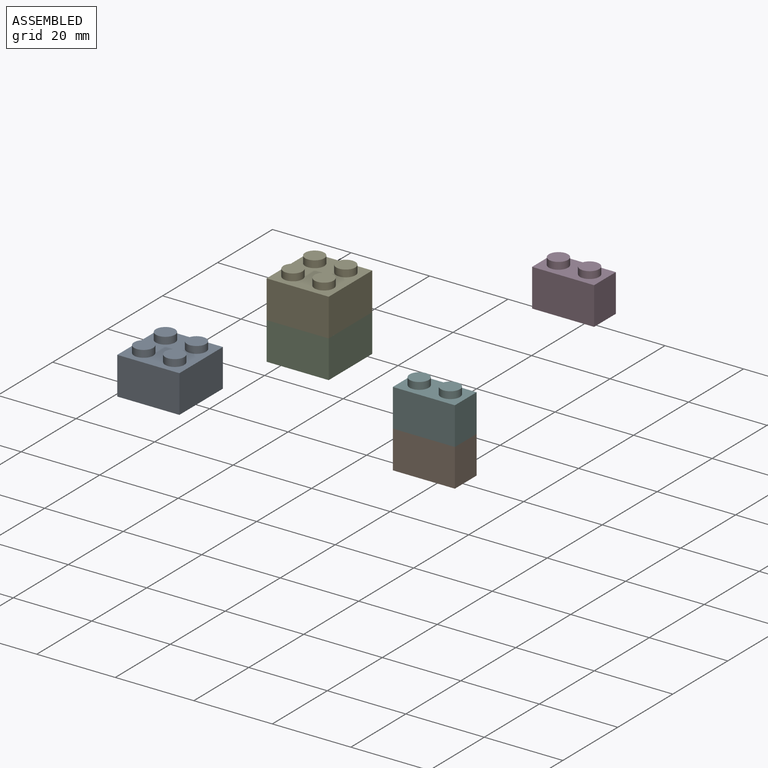
[diagram: assembled view]
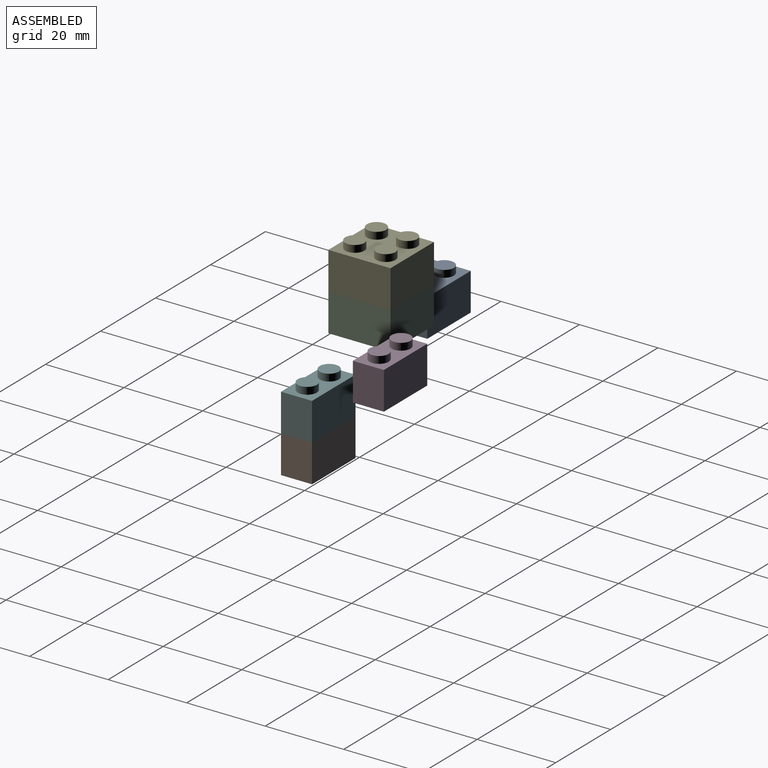
[diagram: assembled view, second angle]
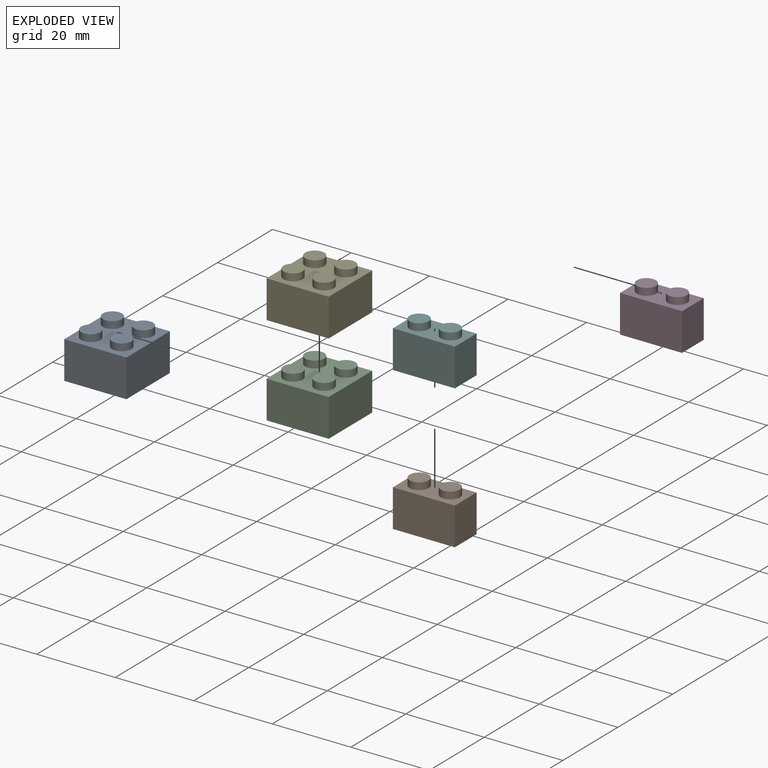
[diagram: exploded view]
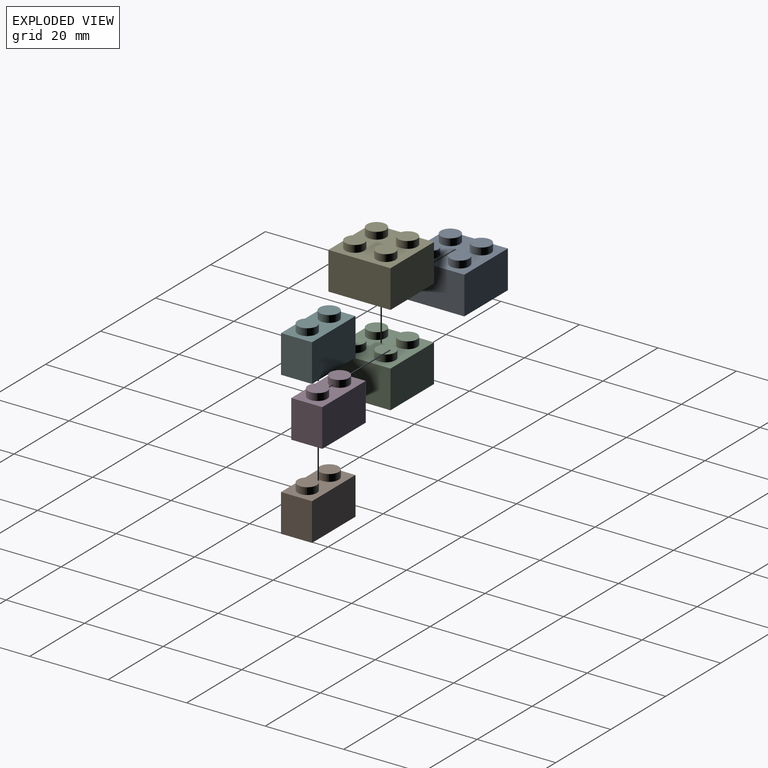
[diagram: exploded view, second angle]
ASSEMBLY  parts=6 mates=2
PART A: 14 faces, bbox 15.8x15.8x11.4 mm
  f0: plane 15.83x9.6mm, normal (1,0,0), area 152mm2, adj f1,f3,f4,f5
  f1: plane 15.83x9.6mm, normal (0,1,0), area 152mm2, adj f0,f2,f4,f5
  f2: plane 15.83x9.6mm, normal (-1,0,0), area 152mm2, adj f1,f3,f4,f5
  f3: plane 15.83x9.6mm, normal (0,-1,0), area 152mm2, adj f0,f2,f4,f5
  f4: plane 15.83x15.83mm, normal (0,0,1), area 176.1mm2, adj f0,f1,f2,f3,f6,f8,f10,f12
  f5: plane 15.83x15.83mm, normal (0,0,-1), area 250.6mm2, adj f0,f1,f2,f3
  f6: cylinder r=2.44mm len=4.87mm, axis (0,0,-1), area 27.5mm2, adj f4,f7
  f7: plane 4.87x4.87mm, normal (0,0,1), area 18.6mm2, adj f6
  f8: cylinder r=2.44mm len=4.87mm, axis (0,0,-1), area 27.5mm2, adj f4,f9
  f9: plane 4.87x4.87mm, normal (0,0,1), area 18.6mm2, adj f8
  f10: cylinder r=2.44mm len=4.87mm, axis (0,0,-1), area 27.5mm2, adj f4,f11
  f11: plane 4.87x4.87mm, normal (0,0,1), area 18.6mm2, adj f10
  f12: cylinder r=2.44mm len=4.87mm, axis (0,0,-1), area 27.5mm2, adj f4,f13
  f13: plane 4.87x4.87mm, normal (0,0,1), area 18.6mm2, adj f12
PART B: 10 faces, bbox 15.8x7.9x11.4 mm
  f0: plane 15.8x9.6mm, normal (0,1,0), area 151.7mm2, adj f1,f3,f4,f5
  f1: plane 9.6x7.9mm, normal (-1,0,0), area 75.8mm2, adj f0,f2,f4,f5
  f2: plane 15.8x9.6mm, normal (0,-1,0), area 151.7mm2, adj f1,f3,f4,f5
  f3: plane 9.6x7.9mm, normal (1,0,0), area 75.8mm2, adj f0,f2,f4,f5
  f4: plane 15.8x7.9mm, normal (0,0,1), area 87.6mm2, adj f0,f1,f2,f3,f6,f8
  f5: plane 15.8x7.9mm, normal (0,0,-1), area 124.8mm2, adj f0,f1,f2,f3
  f6: cylinder r=2.44mm len=4.87mm, axis (0,0,-1), area 27.5mm2, adj f4,f7
  f7: plane 4.87x4.87mm, normal (0,0,1), area 18.6mm2, adj f6
  f8: cylinder r=2.44mm len=4.87mm, axis (0,0,-1), area 27.5mm2, adj f4,f9
  f9: plane 4.87x4.87mm, normal (0,0,1), area 18.6mm2, adj f8
PART C: same geometry as A
PART D: same geometry as B
PART E: same geometry as A
PART F: same geometry as B
PLACE A t=(-21.79,-20.38,-11.69)mm
PLACE B t=(6.88,-9.69,-20.49)mm
PLACE C t=(8.13,-8.78,-0.11)mm
PLACE D t=(22.08,19.26,9.77)mm
PLACE E t=(8.13,-8.78,9.49)mm
PLACE F t=(6.88,-9.69,-10.89)mm
MATE planar F.f5 <-> B.f4  axis (0,0,-1) through (35.38,-9.69,-10.89)mm
MATE planar C.f4 <-> E.f5  axis (0,0,1) through (8.13,-8.78,9.49)mm
